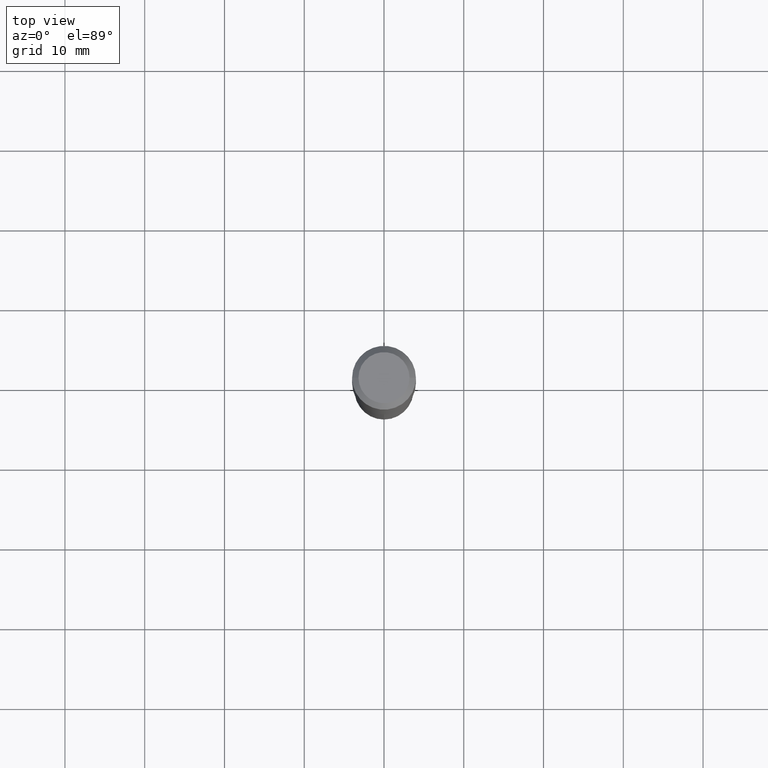
[diagram: clean part render]
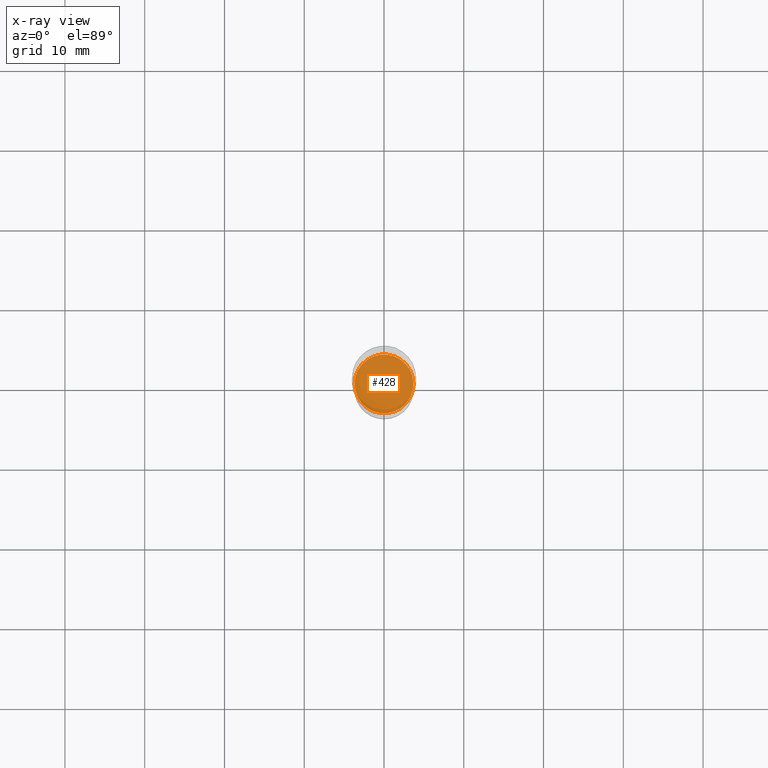
[diagram: x-ray — body ghosted, one internal face saturated and labeled with its STEP entity id]
A machine part, top view, then the same camera in x-ray: the body is ghosted and one INTERNAL B-rep face — a face not visible from any outside direction — is saturated and labeled: STEP entity #428.
In plain terms, the highlighted planar face has unit normal (-0, 0, 1).
Its self-contained STEP definition (entity closure, byte-faithful):
#15 = PLANE ( 'NONE',  #171 ) ;
#30 = ORIENTED_EDGE ( 'NONE', *, *, #276, .F. ) ;
#43 = CARTESIAN_POINT ( 'NONE',  ( 4.371030944175314676E-29, -6.240673745048240238E-15, -1.787400000000000766 ) ) ;
#52 = CARTESIAN_POINT ( 'NONE',  ( 4.371030944175314676E-29, -6.240673745048240238E-15, -1.787400000000000766 ) ) ;
#81 = DIRECTION ( 'NONE',  ( -2.445468806185136597E-29, 3.491481338843145583E-15, 1.000000000000000000 ) ) ;
#110 = DIRECTION ( 'NONE',  ( 1.000000000000000000, -6.982962677686265922E-15, 4.876176775795935793E-29 ) ) ;
#137 = DIRECTION ( 'NONE',  ( -2.445468806185136597E-29, 3.491481338843145583E-15, 1.000000000000000000 ) ) ;
#139 = DIRECTION ( 'NONE',  ( -2.438088387897960049E-29, 3.491481338843145188E-15, 1.000000000000000000 ) ) ;
#171 = AXIS2_PLACEMENT_3D ( 'NONE', #467, #139, #110 ) ;
#174 = CARTESIAN_POINT ( 'NONE',  ( -0.1451500000000000012, -5.206671736918343608E-15, -1.787400000000000766 ) ) ;
#184 = VERTEX_POINT ( 'NONE', #360 ) ;
#236 = AXIS2_PLACEMENT_3D ( 'NONE', #43, #81, #407 ) ;
#261 = EDGE_LOOP ( 'NONE', ( #480, #30 ) ) ;
#276 = EDGE_CURVE ( 'NONE', #400, #184, #422, .T. ) ;
#343 = EDGE_CURVE ( 'NONE', #184, #400, #432, .T. ) ;
#360 = CARTESIAN_POINT ( 'NONE',  ( 0.1451500000000000012, -7.254250777714402286E-15, -1.787400000000000766 ) ) ;
#380 = AXIS2_PLACEMENT_3D ( 'NONE', #52, #137, #425 ) ;
#400 = VERTEX_POINT ( 'NONE', #174 ) ;
#407 = DIRECTION ( 'NONE',  ( 1.000000000000000000, -6.982962677686265922E-15, 0.000000000000000000 ) ) ;
#422 = CIRCLE ( 'NONE', #236, 0.1451500000000000012 ) ;
#423 = FACE_OUTER_BOUND ( 'NONE', #261, .T. ) ;
#425 = DIRECTION ( 'NONE',  ( 1.000000000000000000, -6.982962677686265922E-15, 0.000000000000000000 ) ) ;
#428 = ADVANCED_FACE ( 'NONE', ( #423 ), #15, .F. ) ;
#432 = CIRCLE ( 'NONE', #380, 0.1451500000000000012 ) ;
#467 = CARTESIAN_POINT ( 'NONE',  ( 2.021933865357096692E-29, -9.604714464218412997E-15, -1.787400000000000766 ) ) ;
#480 = ORIENTED_EDGE ( 'NONE', *, *, #343, .F. ) ;